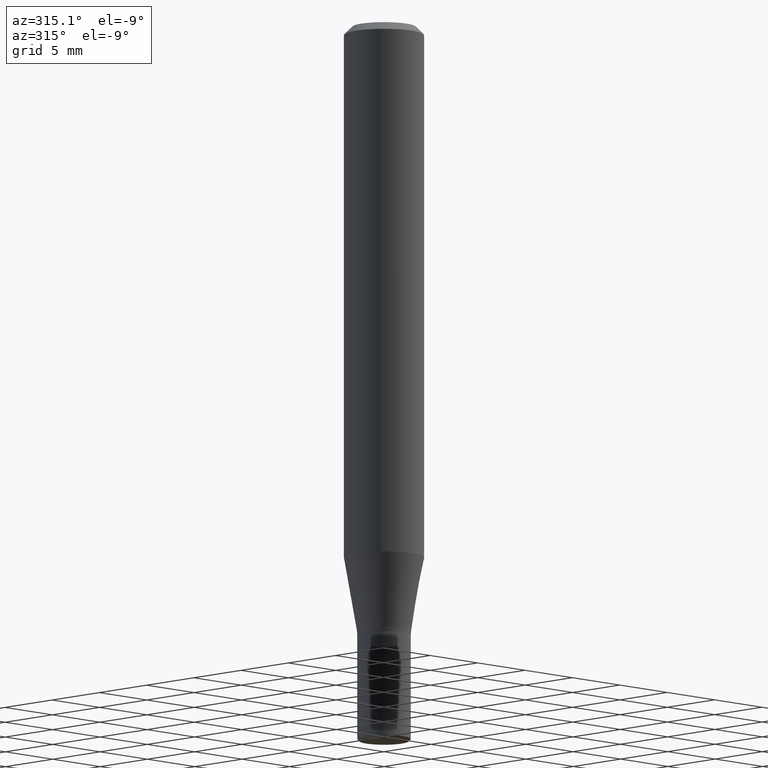
[diagram: clean part render]
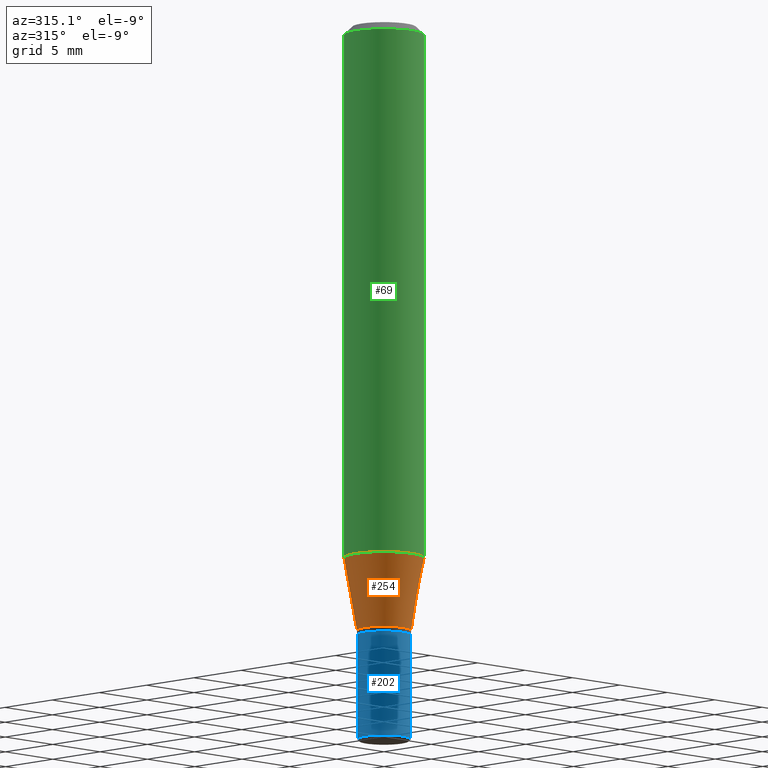
[diagram: same view with three faces highlighted in distinct colors, each labeled with its STEP entity id]
A machine part, auxiliary view with three faces highlighted in distinct colors.
Their STEP definitions:

[orange] entity #254 — the highlighted conical surface has half-angle 10 deg.
#7 = AXIS2_PLACEMENT_3D ( 'NONE', #55, #135, #219 ) ;
#8 = DIRECTION ( 'NONE',  ( 7.109998028014204707E-15, -0.0000000000000000000, 1.000000000000000000 ) ) ;
#16 = EDGE_LOOP ( 'NONE', ( #218 ) ) ;
#25 = CARTESIAN_POINT ( 'NONE',  ( -2.854930182845706564E-13, 0.0000000000000000000, -40.15374085333013454 ) ) ;
#27 = EDGE_CURVE ( 'NONE', #191, #191, #106, .T. ) ;
#42 = CARTESIAN_POINT ( 'NONE',  ( 2.999999999999732658, 0.0000000000000000000, -40.15374085333015586 ) ) ;
#54 = FACE_BOUND ( 'NONE', #16, .T. ) ;
#55 = CARTESIAN_POINT ( 'NONE',  ( -3.245906328870931171E-13, 0.0000000000000000000, -45.65270364466613984 ) ) ;
#60 = DIRECTION ( 'NONE',  ( 1.000000000000000000, 0.0000000000000000000, -6.938893903907187357E-15 ) ) ;
#61 = CIRCLE ( 'NONE', #152, 2.030384493975586402 ) ;
#80 = DIRECTION ( 'NONE',  ( 1.000000000000000000, 0.0000000000000000000, -6.835054074236505469E-15 ) ) ;
#100 = DIRECTION ( 'NONE',  ( -7.109998028014204707E-15, 0.0000000000000000000, -1.000000000000000000 ) ) ;
#106 = CIRCLE ( 'NONE', #239, 3.000000000000017764 ) ;
#132 = CONICAL_SURFACE ( 'NONE', #7, 2.030384493975586402, 0.1745329251994261199 ) ;
#135 = DIRECTION ( 'NONE',  ( 7.109998028014204707E-15, -0.0000000000000000000, 1.000000000000000000 ) ) ;
#139 = EDGE_CURVE ( 'NONE', #260, #260, #61, .T. ) ;
#152 = AXIS2_PLACEMENT_3D ( 'NONE', #159, #8, #80 ) ;
#159 = CARTESIAN_POINT ( 'NONE',  ( -3.245906328870931171E-13, 0.0000000000000000000, -45.65270364466613984 ) ) ;
#191 = VERTEX_POINT ( 'NONE', #42 ) ;
#218 = ORIENTED_EDGE ( 'NONE', *, *, #139, .T. ) ;
#219 = DIRECTION ( 'NONE',  ( 1.000000000000000000, 0.0000000000000000000, -6.835054074236505469E-15 ) ) ;
#231 = CARTESIAN_POINT ( 'NONE',  ( 2.030384493975261773, 0.0000000000000000000, -45.65270364466615405 ) ) ;
#236 = ORIENTED_EDGE ( 'NONE', *, *, #27, .T. ) ;
#239 = AXIS2_PLACEMENT_3D ( 'NONE', #25, #100, #60 ) ;
#242 = EDGE_LOOP ( 'NONE', ( #236 ) ) ;
#243 = FACE_OUTER_BOUND ( 'NONE', #242, .T. ) ;
#254 = ADVANCED_FACE ( 'NONE', ( #243, #54 ), #132, .T. ) ;
#260 = VERTEX_POINT ( 'NONE', #231 ) ;

[blue] entity #202 — the highlighted cylindrical surface (bore or boss wall) has radius 2 mm, axis along (0, -0, 1).
#1 = CIRCLE ( 'NONE', #49, 2.000000000000025313 ) ;
#36 = CARTESIAN_POINT ( 'NONE',  ( 6.056509442254067229E-14, 0.0000000000000000000, 8.673266236417621400 ) ) ;
#49 = AXIS2_PLACEMENT_3D ( 'NONE', #88, #52, #214 ) ;
#52 = DIRECTION ( 'NONE',  ( -1.019883235173059248E-14, 0.0000000000000000000, -1.000000000000000000 ) ) ;
#71 = EDGE_LOOP ( 'NONE', ( #198 ) ) ;
#79 = CARTESIAN_POINT ( 'NONE',  ( 1.999999999999673816, 0.0000000000000000000, -46.00000000000001421 ) ) ;
#88 = CARTESIAN_POINT ( 'NONE',  ( -4.014317058256533796E-13, 0.0000000000000000000, -53.86999999999999744 ) ) ;
#92 = CIRCLE ( 'NONE', #113, 2.000000000000000888 ) ;
#96 = CARTESIAN_POINT ( 'NONE',  ( -2.000000000000426770, 0.0000000000000000000, -53.86999999999997613 ) ) ;
#108 = FACE_OUTER_BOUND ( 'NONE', #131, .T. ) ;
#112 = ORIENTED_EDGE ( 'NONE', *, *, #215, .F. ) ;
#113 = AXIS2_PLACEMENT_3D ( 'NONE', #129, #234, #130 ) ;
#123 = VERTEX_POINT ( 'NONE', #79 ) ;
#128 = DIRECTION ( 'NONE',  ( 1.000000000000000000, 0.0000000000000000000, -7.806255641895564083E-15 ) ) ;
#129 = CARTESIAN_POINT ( 'NONE',  ( -3.270599092886533503E-13, 0.0000000000000000000, -46.00000000000000000 ) ) ;
#130 = DIRECTION ( 'NONE',  ( 1.000000000000000000, 0.0000000000000000000, -6.938893903907225222E-15 ) ) ;
#131 = EDGE_LOOP ( 'NONE', ( #112 ) ) ;
#147 = FACE_OUTER_BOUND ( 'NONE', #71, .T. ) ;
#148 = CYLINDRICAL_SURFACE ( 'NONE', #253, 2.000000000000017319 ) ;
#192 = EDGE_CURVE ( 'NONE', #123, #123, #92, .T. ) ;
#198 = ORIENTED_EDGE ( 'NONE', *, *, #192, .F. ) ;
#202 = ADVANCED_FACE ( 'NONE', ( #147, #108 ), #148, .T. ) ;
#214 = DIRECTION ( 'NONE',  ( -1.000000000000000000, 0.0000000000000000000, 1.040834085586071162E-14 ) ) ;
#215 = EDGE_CURVE ( 'NONE', #248, #248, #1, .T. ) ;
#234 = DIRECTION ( 'NONE',  ( 7.109998028014204707E-15, -0.0000000000000000000, 1.000000000000000000 ) ) ;
#235 = DIRECTION ( 'NONE',  ( 7.392667979137421472E-15, -0.0000000000000000000, 1.000000000000000000 ) ) ;
#248 = VERTEX_POINT ( 'NONE', #96 ) ;
#253 = AXIS2_PLACEMENT_3D ( 'NONE', #36, #235, #128 ) ;

[green] entity #69 — the highlighted cylindrical surface (bore or boss wall) has radius 3 mm, axis along (0, 0, 1).
#5 = EDGE_LOOP ( 'NONE', ( #37 ) ) ;
#11 = FACE_OUTER_BOUND ( 'NONE', #5, .T. ) ;
#20 = EDGE_CURVE ( 'NONE', #222, #222, #173, .T. ) ;
#25 = CARTESIAN_POINT ( 'NONE',  ( -2.854930182845706564E-13, 0.0000000000000000000, -40.15374085333013454 ) ) ;
#27 = EDGE_CURVE ( 'NONE', #191, #191, #106, .T. ) ;
#29 = DIRECTION ( 'NONE',  ( 6.982962677686266711E-15, 0.0000000000000000000, 1.000000000000000000 ) ) ;
#37 = ORIENTED_EDGE ( 'NONE', *, *, #20, .F. ) ;
#40 = AXIS2_PLACEMENT_3D ( 'NONE', #120, #29, #207 ) ;
#42 = CARTESIAN_POINT ( 'NONE',  ( 2.999999999999732658, 0.0000000000000000000, -40.15374085333015586 ) ) ;
#45 = ORIENTED_EDGE ( 'NONE', *, *, #27, .F. ) ;
#60 = DIRECTION ( 'NONE',  ( 1.000000000000000000, 0.0000000000000000000, -6.938893903907187357E-15 ) ) ;
#69 = ADVANCED_FACE ( 'NONE', ( #226, #11 ), #127, .T. ) ;
#86 = CARTESIAN_POINT ( 'NONE',  ( 2.999999999999995559, 0.0000000000000000000, -0.6000000000000241807 ) ) ;
#97 = CARTESIAN_POINT ( 'NONE',  ( -4.189777606611783692E-15, 0.0000000000000000000, -0.6000000000000033085 ) ) ;
#100 = DIRECTION ( 'NONE',  ( -7.109998028014204707E-15, 0.0000000000000000000, -1.000000000000000000 ) ) ;
#106 = CIRCLE ( 'NONE', #239, 3.000000000000017764 ) ;
#117 = DIRECTION ( 'NONE',  ( 1.000000000000000000, 0.0000000000000000000, -6.975033976323412122E-15 ) ) ;
#120 = CARTESIAN_POINT ( 'NONE',  ( -3.770799845950583519E-13, 0.0000000000000000000, -53.99999999999999289 ) ) ;
#127 = CYLINDRICAL_SURFACE ( 'NONE', #40, 3.000000000000017764 ) ;
#137 = AXIS2_PLACEMENT_3D ( 'NONE', #97, #203, #117 ) ;
#170 = EDGE_LOOP ( 'NONE', ( #45 ) ) ;
#173 = CIRCLE ( 'NONE', #137, 3.000000000000000000 ) ;
#191 = VERTEX_POINT ( 'NONE', #42 ) ;
#203 = DIRECTION ( 'NONE',  ( 6.982962677686266711E-15, 0.0000000000000000000, 1.000000000000000000 ) ) ;
#207 = DIRECTION ( 'NONE',  ( 1.000000000000000000, 0.0000000000000000000, -6.938893903907187357E-15 ) ) ;
#222 = VERTEX_POINT ( 'NONE', #86 ) ;
#226 = FACE_OUTER_BOUND ( 'NONE', #170, .T. ) ;
#239 = AXIS2_PLACEMENT_3D ( 'NONE', #25, #100, #60 ) ;